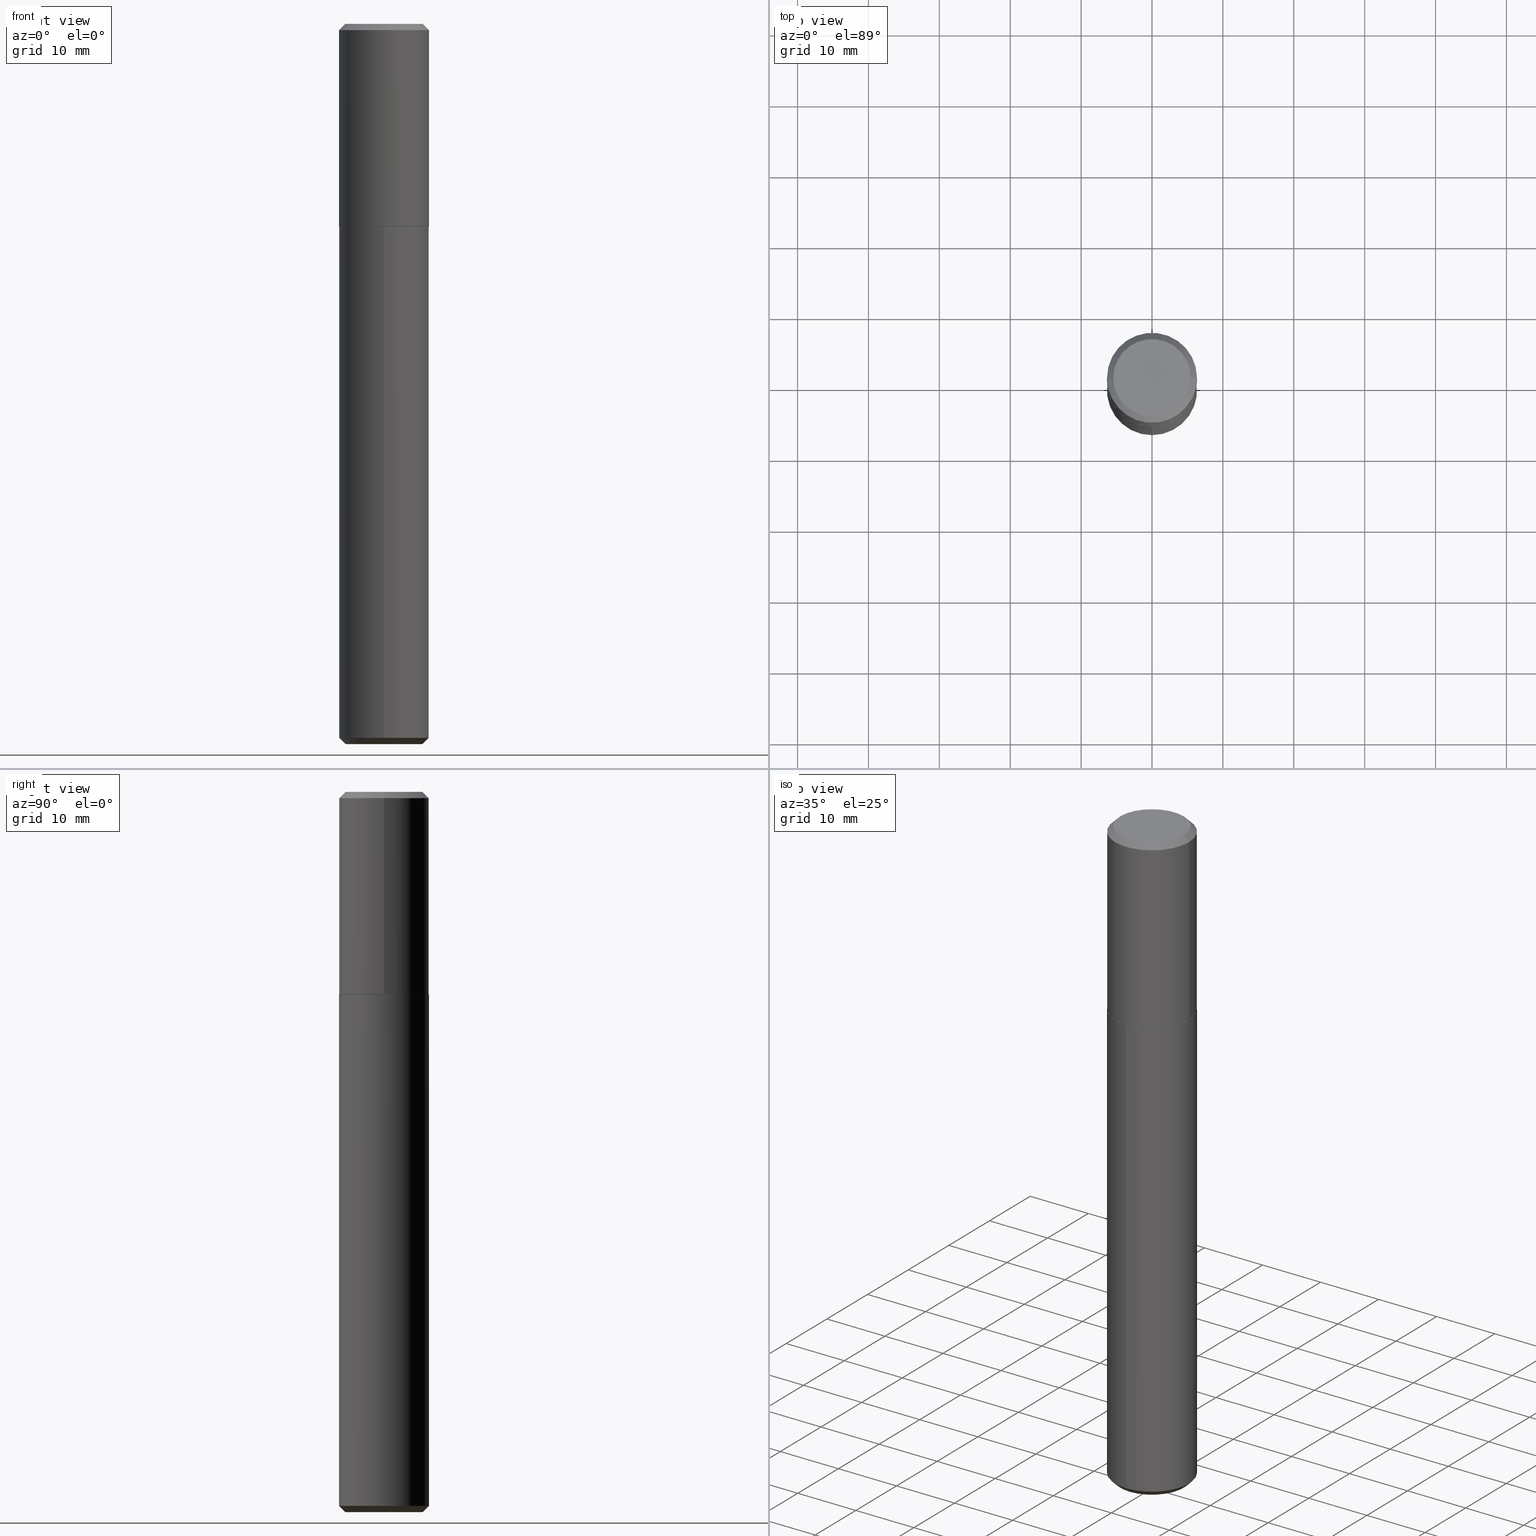
[diagram: canonical four-view strip — front | top / right | iso, engineering-drawing reading convention]
A machine part, canonical four-view strip (front | top / right | iso — engineering-drawing reading convention). The complete STEP part file that produces these views, byte-faithful:
ISO-10303-21;
HEADER;
FILE_DESCRIPTION (( 'STEP AP203' ),
    '1' );
FILE_NAME ('70032.STEP',
    '2024-04-19T13:36:19',
    ( '' ),
    ( '' ),
    'SwSTEP 2.0',
    'SolidWorks 2023',
    '' );
FILE_SCHEMA (( 'CONFIG_CONTROL_DESIGN' ));
ENDSEC;

DATA;
#1 = CARTESIAN_POINT ( 'NONE',  ( -0.2500000000000001110, -2.149813926128866467E-15, -1.124500000000000055 ) ) ;
#2 = VECTOR ( 'NONE', #72, 39.37007874015748143 ) ;
#3 = EDGE_CURVE ( 'NONE', #17, #251, #217, .T. ) ;
#4 = DIRECTION ( 'NONE',  ( -2.447946569938002556E-29, 3.487933040123486811E-15, 1.000000000000000000 ) ) ;
#5 = PERSON_AND_ORGANIZATION_ROLE ( 'creator' ) ;
#6 = LOCAL_TIME ( 9, 36, 19.00000000000000000, #164 ) ;
#7 = LINE ( 'NONE', #305, #144 ) ;
#8 = CARTESIAN_POINT ( 'NONE',  ( 9.703320665582205963E-29, -1.383364634014924079E-14, -3.964999999999999858 ) ) ;
#9 = VECTOR ( 'NONE', #275, 39.37007874015748854 ) ;
#10 = UNCERTAINTY_MEASURE_WITH_UNIT (LENGTH_MEASURE( 1.000000000000000082E-05 ), #359, 'distance_accuracy_value', 'NONE');
#11 = DIRECTION ( 'NONE',  ( 1.000000000000000000, -6.982962677686266711E-15, 0.000000000000000000 ) ) ;
#12 = AXIS2_PLACEMENT_3D ( 'NONE', #328, #100, #35 ) ;
#13 = EDGE_LOOP ( 'NONE', ( #408, #293, #118, #50 ) ) ;
#14 = FACE_OUTER_BOUND ( 'NONE', #137, .T. ) ;
#15 = CARTESIAN_POINT ( 'NONE',  ( 9.703320665582205963E-29, -1.383364634014924079E-14, -3.964999999999999858 ) ) ;
#16 = PERSON_AND_ORGANIZATION_ROLE ( 'design_owner' ) ;
#17 = VERTEX_POINT ( 'NONE', #272 ) ;
#18 = CARTESIAN_POINT ( 'NONE',  ( 2.751152406958279232E-29, -3.927916506198539224E-15, -1.125000000000000222 ) ) ;
#19 = ADVANCED_FACE ( 'NONE', ( #402 ), #278, .T. ) ;
#20 = AXIS2_PLACEMENT_3D ( 'NONE', #15, #361, #73 ) ;
#21 = DIRECTION ( 'NONE',  ( -2.447946569938002556E-29, 3.487933040123486811E-15, 1.000000000000000000 ) ) ;
#22 = ORIENTED_EDGE ( 'NONE', *, *, #246, .T. ) ;
#23 = ORIENTED_EDGE ( 'NONE', *, *, #388, .F. ) ;
#24 = EDGE_LOOP ( 'NONE', ( #22, #186 ) ) ;
#25 = CALENDAR_DATE ( 2024, 19, 4 ) ;
#26 = DIRECTION ( 'NONE',  ( 2.445468806185136597E-29, -3.491481338843145583E-15, -1.000000000000000000 ) ) ;
#27 = ORIENTED_EDGE ( 'NONE', *, *, #96, .T. ) ;
#28 = DIRECTION ( 'NONE',  ( -2.445468806185136597E-29, 3.491481338843145583E-15, 1.000000000000000000 ) ) ;
#29 = EDGE_CURVE ( 'NONE', #54, #268, #416, .T. ) ;
#30 = ORIENTED_EDGE ( 'NONE', *, *, #348, .T. ) ;
#31 = PRODUCT_DEFINITION_FORMATION_WITH_SPECIFIED_SOURCE ( 'ANY', '', #224, .NOT_KNOWN. ) ;
#32 = CIRCLE ( 'NONE', #102, 0.2500000000000000000 ) ;
#33 = EDGE_CURVE ( 'NONE', #251, #403, #76, .T. ) ;
#34 = EDGE_CURVE ( 'NONE', #311, #95, #108, .T. ) ;
#35 = DIRECTION ( 'NONE',  ( -6.982962677686265922E-15, -1.000000000000000000, 3.278217592397115862E-15 ) ) ;
#36 = PERSON_AND_ORGANIZATION ( #283, #381 ) ;
#37 = CARTESIAN_POINT ( 'NONE',  ( 2.751152406958279232E-29, -3.927916506198539224E-15, -1.125000000000000222 ) ) ;
#38 = CARTESIAN_POINT ( 'NONE',  ( 1.776356839400348678E-15, 0.2499999999999863720, -3.965000000000001190 ) ) ;
#39 = DIRECTION ( 'NONE',  ( 1.000000000000000000, -6.982962677686265922E-15, 0.000000000000000000 ) ) ;
#40 = LOCAL_TIME ( 9, 36, 19.00000000000000000, #335 ) ;
#41 = DIRECTION ( 'NONE',  ( -6.982962677686265922E-15, -1.000000000000000000, 3.278217592397115862E-15 ) ) ;
#42 = VECTOR ( 'NONE', #269, 39.37007874015748143 ) ;
#43 = CC_DESIGN_PERSON_AND_ORGANIZATION_ASSIGNMENT ( #286, #368, ( #31 ) ) ;
#44 = CARTESIAN_POINT ( 'NONE',  ( -0.2500000000000000555, 1.776356839400250859E-15, -1.229733772563726866E-29 ) ) ;
#45 = EDGE_CURVE ( 'NONE', #291, #346, #339, .T. ) ;
#46 = DIRECTION ( 'NONE',  ( -2.445468806185136597E-29, 3.491481338843145583E-15, 1.000000000000000000 ) ) ;
#47 = PERSON_AND_ORGANIZATION_ROLE ( 'classification_officer' ) ;
#48 = CARTESIAN_POINT ( 'NONE',  ( -5.998655598456380365E-46, 8.564490386131638345E-32, 2.452967538692148404E-17 ) ) ;
#49 = CARTESIAN_POINT ( 'NONE',  ( 9.703320665582205963E-29, -1.383364634014924079E-14, -3.964999999999999858 ) ) ;
#50 = ORIENTED_EDGE ( 'NONE', *, *, #400, .F. ) ;
#51 = AXIS2_PLACEMENT_3D ( 'NONE', #48, #367, #238 ) ;
#52 = DIRECTION ( 'NONE',  ( -2.447946569938002556E-29, 3.487933040123486811E-15, 1.000000000000000000 ) ) ;
#53 = CARTESIAN_POINT ( 'NONE',  ( 2.751152406958279232E-29, -3.927916506198539224E-15, -1.125000000000000222 ) ) ;
#54 = VERTEX_POINT ( 'NONE', #237 ) ;
#55 = DIRECTION ( 'NONE',  ( -2.445468806185136597E-29, 3.491481338843145583E-15, 1.000000000000000000 ) ) ;
#56 = FACE_OUTER_BOUND ( 'NONE', #62, .T. ) ;
#57 = ORIENTED_EDGE ( 'NONE', *, *, #388, .T. ) ;
#58 = CARTESIAN_POINT ( 'NONE',  ( 0.2500000000000000555, -1.745740669421567269E-15, 1.219044193948984228E-29 ) ) ;
#59 = CONICAL_SURFACE ( 'NONE', #298, 0.2500000000000001110, 0.7853981633972775267 ) ;
#60 = DIRECTION ( 'NONE',  ( 1.000000000000000000, -6.982962677686265922E-15, 0.000000000000000000 ) ) ;
#61 = ADVANCED_FACE ( 'NONE', ( #80 ), #308, .T. ) ;
#62 = EDGE_LOOP ( 'NONE', ( #27, #218, #414, #249 ) ) ;
#63 = VECTOR ( 'NONE', #65, 39.37007874015748143 ) ;
#64 = AXIS2_PLACEMENT_3D ( 'NONE', #198, #324, #296 ) ;
#65 = DIRECTION ( 'NONE',  ( 0.7071067811864267805, -2.468850131080992517E-15, 0.7071067811866682540 ) ) ;
#66 = CALENDAR_DATE ( 2024, 19, 4 ) ;
#67 = ADVANCED_FACE ( 'NONE', ( #142 ), #332, .T. ) ;
#68 = AXIS2_PLACEMENT_3D ( 'NONE', #119, #55, #373 ) ;
#69 = EDGE_CURVE ( 'NONE', #268, #54, #263, .T. ) ;
#70 = DATE_AND_TIME ( #66, #6 ) ;
#71 = DIRECTION ( 'NONE',  ( 2.438088387897960049E-29, -3.491481338843145188E-15, -1.000000000000000000 ) ) ;
#72 = DIRECTION ( 'NONE',  ( -0.7071067811864267805, 7.493145998869918709E-15, 0.7071067811866682540 ) ) ;
#73 = DIRECTION ( 'NONE',  ( -6.982962677686265922E-15, -1.000000000000000000, 4.370956789862821150E-15 ) ) ;
#74 = CARTESIAN_POINT ( 'NONE',  ( 2.751152406958279232E-29, -3.927916506198539224E-15, -1.125000000000000222 ) ) ;
#75 = ORIENTED_EDGE ( 'NONE', *, *, #162, .F. ) ;
#76 = LINE ( 'NONE', #208, #9 ) ;
#77 = AXIS2_PLACEMENT_3D ( 'NONE', #165, #329, #41 ) ;
#78 = APPROVAL ( #264, 'UNSPECIFIED' ) ;
#79 = APPLICATION_CONTEXT ( 'configuration controlled 3d designs of mechanical parts and assemblies' ) ;
#80 = FACE_OUTER_BOUND ( 'NONE', #193, .T. ) ;
#81 = PLANE ( 'NONE',  #136 ) ;
#82 = VERTEX_POINT ( 'NONE', #244 ) ;
#83 = CARTESIAN_POINT ( 'NONE',  ( 2.749929672555186430E-29, -3.926170765529117721E-15, -1.124500000000000055 ) ) ;
#84 = VECTOR ( 'NONE', #92, 39.37007874015748143 ) ;
#85 = DIRECTION ( 'NONE',  ( 1.000000000000000000, -6.982962677686266711E-15, 0.000000000000000000 ) ) ;
#86 = VERTEX_POINT ( 'NONE', #116 ) ;
#87 = EDGE_LOOP ( 'NONE', ( #415, #257, #248, #341 ) ) ;
#88 = DIMENSIONAL_EXPONENTS ( 1.000000000000000000, 0.000000000000000000, 0.000000000000000000, 0.000000000000000000, 0.000000000000000000, 0.000000000000000000, 0.000000000000000000 ) ;
#89 = APPROVAL_DATE_TIME ( #152, #130 ) ;
#90 = CARTESIAN_POINT ( 'NONE',  ( 8.559140821648030357E-31, -1.222018468595108458E-16, -0.03500000000000021844 ) ) ;
#91 = ORIENTED_EDGE ( 'NONE', *, *, #135, .F. ) ;
#92 = DIRECTION ( 'NONE',  ( -2.445468806185136877E-29, 3.491481338843145188E-15, 1.000000000000000000 ) ) ;
#93 = ORIENTED_EDGE ( 'NONE', *, *, #94, .T. ) ;
#94 = EDGE_CURVE ( 'NONE', #349, #172, #213, .T. ) ;
#95 = VERTEX_POINT ( 'NONE', #365 ) ;
#96 = EDGE_CURVE ( 'NONE', #82, #311, #179, .T. ) ;
#97 = CC_DESIGN_PERSON_AND_ORGANIZATION_ASSIGNMENT ( #318, #113, ( #31 ) ) ;
#98 = CC_DESIGN_APPROVAL ( #78, ( #156 ) ) ;
#99 = AXIS2_PLACEMENT_3D ( 'NONE', #357, #364, #200 ) ;
#100 = DIRECTION ( 'NONE',  ( -2.447946569938002556E-29, 3.487933040123486811E-15, 1.000000000000000000 ) ) ;
#101 = DIRECTION ( 'NONE',  ( -2.438088387897960049E-29, 3.491481338843145188E-15, 1.000000000000000000 ) ) ;
#102 = AXIS2_PLACEMENT_3D ( 'NONE', #171, #214, #106 ) ;
#103 = LINE ( 'NONE', #386, #2 ) ;
#104 = DIRECTION ( 'NONE',  ( -2.445468806185136597E-29, 3.491481338843145583E-15, 1.000000000000000000 ) ) ;
#105 = DESIGN_CONTEXT ( 'detailed design', #79, 'design' ) ;
#106 = DIRECTION ( 'NONE',  ( 1.000000000000000000, -6.982962677686266711E-15, 0.000000000000000000 ) ) ;
#107 = ORIENTED_EDGE ( 'NONE', *, *, #400, .T. ) ;
#108 = LINE ( 'NONE', #44, #42 ) ;
#109 = APPLICATION_PROTOCOL_DEFINITION ( 'international standard', 'config_control_design', 1994, #161 ) ;
#110 = DIRECTION ( 'NONE',  ( -6.982962677686265922E-15, -1.000000000000000000, 3.278217592397115862E-15 ) ) ;
#111 = ADVANCED_FACE ( 'NONE', ( #247 ), #81, .F. ) ;
#112 = CARTESIAN_POINT ( 'NONE',  ( -5.998655598456380365E-46, 8.564490386131638345E-32, 2.452967538692148404E-17 ) ) ;
#113 = PERSON_AND_ORGANIZATION_ROLE ( 'design_supplier' ) ;
#114 = CIRCLE ( 'NONE', #201, 0.2495000000000002216 ) ;
#115 = FACE_OUTER_BOUND ( 'NONE', #150, .T. ) ;
#116 = CARTESIAN_POINT ( 'NONE',  ( 0.2500000000000000000, -1.867942516281077449E-15, -0.03500000000000021844 ) ) ;
#117 = ADVANCED_FACE ( 'NONE', ( #280 ), #360, .T. ) ;
#118 = ORIENTED_EDGE ( 'NONE', *, *, #33, .T. ) ;
#119 = CARTESIAN_POINT ( 'NONE',  ( 2.749929672555186430E-29, -3.926170765529117721E-15, -1.124500000000000055 ) ) ;
#120 = AXIS2_PLACEMENT_3D ( 'NONE', #292, #26, #287 ) ;
#121 = COORDINATED_UNIVERSAL_TIME_OFFSET ( 5, 0, .BEHIND. ) ;
#122 = AXIS2_PLACEMENT_3D ( 'NONE', #112, #204, #301 ) ;
#123 = EDGE_LOOP ( 'NONE', ( #30, #375, #23, #289 ) ) ;
#124 = AXIS2_PLACEMENT_3D ( 'NONE', #192, #52, #401 ) ;
#125 = LINE ( 'NONE', #58, #84 ) ;
#126 = DIRECTION ( 'NONE',  ( -0.7071067811865447972, 2.468850131082228267E-15, -0.7071067811865502373 ) ) ;
#127 = COORDINATED_UNIVERSAL_TIME_OFFSET ( 5, 0, .BEHIND. ) ;
#128 = EDGE_LOOP ( 'NONE', ( #313, #282, #404, #321 ) ) ;
#129 = ORIENTED_EDGE ( 'NONE', *, *, #145, .T. ) ;
#130 = APPROVAL ( #316, 'UNSPECIFIED' ) ;
#131 = EDGE_LOOP ( 'NONE', ( #256, #141, #154, #91 ) ) ;
#132 = CIRCLE ( 'NONE', #160, 0.2500000000000000000 ) ;
#133 = CC_DESIGN_PERSON_AND_ORGANIZATION_ASSIGNMENT ( #245, #47, ( #231 ) ) ;
#134 = AXIS2_PLACEMENT_3D ( 'NONE', #18, #170, #394 ) ;
#135 = EDGE_CURVE ( 'NONE', #54, #95, #7, .T. ) ;
#136 = AXIS2_PLACEMENT_3D ( 'NONE', #336, #71, #146 ) ;
#137 = EDGE_LOOP ( 'NONE', ( #344, #277 ) ) ;
#138 = CARTESIAN_POINT ( 'NONE',  ( 2.751152406958279232E-29, -3.927916506198539224E-15, -1.125000000000000222 ) ) ;
#139 = CARTESIAN_POINT ( 'NONE',  ( 9.788998795530035844E-29, -1.395572399655356252E-14, -4.000000000000000000 ) ) ;
#140 = APPLICATION_PROTOCOL_DEFINITION ( 'international standard', 'config_control_design', 1994, #79 ) ;
#141 = ORIENTED_EDGE ( 'NONE', *, *, #157, .T. ) ;
#142 = FACE_OUTER_BOUND ( 'NONE', #376, .T. ) ;
#143 = PERSON_AND_ORGANIZATION ( #283, #381 ) ;
#144 = VECTOR ( 'NONE', #126, 39.37007874015748143 ) ;
#145 = EDGE_CURVE ( 'NONE', #311, #82, #372, .T. ) ;
#146 = DIRECTION ( 'NONE',  ( -1.000000000000000000, 6.982962677686265922E-15, -4.876176775795935793E-29 ) ) ;
#147 = APPROVAL_ROLE ( '' ) ;
#148 = DIRECTION ( 'NONE',  ( -2.445468806185136597E-29, 3.491481338843145583E-15, 1.000000000000000000 ) ) ;
#149 = DIRECTION ( 'NONE',  ( 0.7071067811865447972, -7.319954787623246579E-15, -0.7071067811865502373 ) ) ;
#150 = EDGE_LOOP ( 'NONE', ( #221, #351, #259, #225 ) ) ;
#151 = CARTESIAN_POINT ( 'NONE',  ( -1.745740669421539068E-15, -0.2500000000000039413, -1.124999999999999334 ) ) ;
#152 = DATE_AND_TIME ( #25, #266 ) ;
#153 = DIRECTION ( 'NONE',  ( 5.024295867788060812E-15, 0.7071067811865499042, 0.7071067811865450192 ) ) ;
#154 = ORIENTED_EDGE ( 'NONE', *, *, #187, .T. ) ;
#155 = FACE_OUTER_BOUND ( 'NONE', #87, .T. ) ;
#156 = PRODUCT_DEFINITION ( 'UNKNOWN', '', #31, #105 ) ;
#157 = EDGE_CURVE ( 'NONE', #268, #86, #216, .T. ) ;
#158 = FACE_OUTER_BOUND ( 'NONE', #128, .T. ) ;
#159 = ADVANCED_FACE ( 'NONE', ( #155 ), #258, .T. ) ;
#160 = AXIS2_PLACEMENT_3D ( 'NONE', #74, #393, #110 ) ;
#161 = APPLICATION_CONTEXT ( 'configuration controlled 3d designs of mechanical parts and assemblies' ) ;
#162 = EDGE_CURVE ( 'NONE', #403, #319, #184, .T. ) ;
#163 = DIRECTION ( 'NONE',  ( 1.000000000000000000, -6.982962677686265922E-15, 4.876176775795935793E-29 ) ) ;
#164 = COORDINATED_UNIVERSAL_TIME_OFFSET ( 5, 0, .BEHIND. ) ;
#165 = CARTESIAN_POINT ( 'NONE',  ( 2.751152406958279232E-29, -3.927916506198539224E-15, -1.125000000000000222 ) ) ;
#166 = DIRECTION ( 'NONE',  ( -2.447946569938002275E-29, 3.487933040123486811E-15, 1.000000000000000000 ) ) ;
#167 = APPROVAL_PERSON_ORGANIZATION ( #143, #130, #185 ) ;
#168 = CLOSED_SHELL ( 'NONE', ( #262, #294, #159, #384, #212, #61, #327, #111 ) ) ;
#169 = AXIS2_PLACEMENT_3D ( 'NONE', #138, #101, #163 ) ;
#170 = DIRECTION ( 'NONE',  ( -2.445468806185136597E-29, 3.491481338843145583E-15, 1.000000000000000000 ) ) ;
#171 = CARTESIAN_POINT ( 'NONE',  ( 8.559140821648030357E-31, -1.222018468595108458E-16, -0.03500000000000021844 ) ) ;
#172 = VERTEX_POINT ( 'NONE', #288 ) ;
#173 = DIRECTION ( 'NONE',  ( 1.000000000000000000, -6.982962677686265922E-15, 0.000000000000000000 ) ) ;
#174 = PERSON_AND_ORGANIZATION ( #283, #381 ) ;
#175 = DIRECTION ( 'NONE',  ( -2.447946569938002556E-29, 3.487933040123486811E-15, 1.000000000000000000 ) ) ;
#176 = CALENDAR_DATE ( 2024, 19, 4 ) ;
#177 = APPROVAL ( #411, 'UNSPECIFIED' ) ;
#178 = DIRECTION ( 'NONE',  ( -6.982962677686265922E-15, -1.000000000000000000, 3.278217592397115862E-15 ) ) ;
#179 = CIRCLE ( 'NONE', #326, 0.2500000000000001110 ) ;
#180 = DIRECTION ( 'NONE',  ( -2.445468806185136597E-29, 3.491481338843145583E-15, 1.000000000000000000 ) ) ;
#181 = ADVANCED_FACE ( 'NONE', ( #229 ), #350, .F. ) ;
#182 = ORIENTED_EDGE ( 'NONE', *, *, #246, .F. ) ;
#183 = ORIENTED_EDGE ( 'NONE', *, *, #162, .T. ) ;
#184 = LINE ( 'NONE', #342, #371 ) ;
#185 = APPROVAL_ROLE ( '' ) ;
#186 = ORIENTED_EDGE ( 'NONE', *, *, #377, .T. ) ;
#187 = EDGE_CURVE ( 'NONE', #86, #95, #32, .T. ) ;
#188 = ADVANCED_FACE ( 'NONE', ( #337 ), #267, .T. ) ;
#189 = CARTESIAN_POINT ( 'NONE',  ( 0.2150000000000000244, -1.656166707911636545E-15, 2.452967538693252193E-17 ) ) ;
#190 = AXIS2_PLACEMENT_3D ( 'NONE', #49, #250, #397 ) ;
#191 = ORIENTED_EDGE ( 'NONE', *, *, #320, .T. ) ;
#192 = CARTESIAN_POINT ( 'NONE',  ( 9.788998795530035844E-29, -1.395572399655356252E-14, -4.000000000000000000 ) ) ;
#193 = EDGE_LOOP ( 'NONE', ( #331, #129, #191, #379 ) ) ;
#194 = ORIENTED_EDGE ( 'NONE', *, *, #69, .T. ) ;
#195 = APPROVAL_PERSON_ORGANIZATION ( #300, #78, #383 ) ;
#196 = AXIS2_PLACEMENT_3D ( 'NONE', #37, #21, #178 ) ;
#197 = CC_DESIGN_DATE_AND_TIME_ASSIGNMENT ( #211, #279, ( #231 ) ) ;
#198 = CARTESIAN_POINT ( 'NONE',  ( 0.000000000000000000, 0.000000000000000000, 0.000000000000000000 ) ) ;
#199 = CC_DESIGN_DATE_AND_TIME_ASSIGNMENT ( #315, #396, ( #156 ) ) ;
#200 = DIRECTION ( 'NONE',  ( 1.000000000000000000, 0.000000000000000000, 0.000000000000000000 ) ) ;
#201 = AXIS2_PLACEMENT_3D ( 'NONE', #312, #148, #85 ) ;
#202 = APPROVAL_DATE_TIME ( #70, #78 ) ;
#203 = DIRECTION ( 'NONE',  ( -6.982962677686265922E-15, -1.000000000000000000, 3.487933040123486811E-15 ) ) ;
#204 = DIRECTION ( 'NONE',  ( -2.445468806185136597E-29, 3.491481338843145583E-15, 1.000000000000000000 ) ) ;
#205 =( NAMED_UNIT ( * ) SI_UNIT ( $, .STERADIAN. ) SOLID_ANGLE_UNIT ( ) );
#206 = CC_DESIGN_SECURITY_CLASSIFICATION ( #231, ( #31 ) ) ;
#207 = CIRCLE ( 'NONE', #252, 0.2500000000000000000 ) ;
#208 = CARTESIAN_POINT ( 'NONE',  ( -1.745740669421469451E-15, -0.2500000000000138223, -3.964999999999998970 ) ) ;
#209 = ORIENTED_EDGE ( 'NONE', *, *, #29, .T. ) ;
#210 = DIRECTION ( 'NONE',  ( 1.000000000000000000, -6.982962677686267499E-15, 4.876176775795935793E-29 ) ) ;
#211 = DATE_AND_TIME ( #366, #40 ) ;
#212 = ADVANCED_FACE ( 'NONE', ( #115 ), #59, .T. ) ;
#213 = LINE ( 'NONE', #392, #236 ) ;
#214 = DIRECTION ( 'NONE',  ( -2.445468806185136597E-29, 3.491481338843145583E-15, 1.000000000000000000 ) ) ;
#215 = EDGE_LOOP ( 'NONE', ( #230, #398 ) ) ;
#216 = LINE ( 'NONE', #340, #295 ) ;
#217 = CIRCLE ( 'NONE', #378, 0.2149999999999999689 ) ;
#218 = ORIENTED_EDGE ( 'NONE', *, *, #34, .T. ) ;
#219 = APPROVAL_DATE_TIME ( #399, #177 ) ;
#220 = LINE ( 'NONE', #261, #387 ) ;
#221 = ORIENTED_EDGE ( 'NONE', *, *, #395, .F. ) ;
#222 = SHAPE_DEFINITION_REPRESENTATION ( #323, #242 ) ;
#223 = DIRECTION ( 'NONE',  ( -1.000000000000000000, 6.982962677686266711E-15, 0.000000000000000000 ) ) ;
#224 = PRODUCT ( '70032', '70032', '', ( #333 ) ) ;
#225 = ORIENTED_EDGE ( 'NONE', *, *, #145, .F. ) ;
#226 = CONICAL_SURFACE ( 'NONE', #120, 0.2500000000000000000, 0.7853981633974445042 ) ;
#227 = EDGE_LOOP ( 'NONE', ( #209, #194 ) ) ;
#228 = EDGE_CURVE ( 'NONE', #346, #291, #114, .T. ) ;
#229 = FACE_OUTER_BOUND ( 'NONE', #24, .T. ) ;
#230 = ORIENTED_EDGE ( 'NONE', *, *, #348, .F. ) ;
#231 = SECURITY_CLASSIFICATION ( '', '', #254 ) ;
#232 = CARTESIAN_POINT ( 'NONE',  ( 0.2500000000000001110, -5.671911434950684398E-15, -1.124500000000000055 ) ) ;
#233 = CC_DESIGN_PERSON_AND_ORGANIZATION_ASSIGNMENT ( #174, #16, ( #224 ) ) ;
#234 = PLANE ( 'NONE',  #169 ) ;
#235 = EDGE_CURVE ( 'NONE', #95, #86, #310, .T. ) ;
#236 = VECTOR ( 'NONE', #239, 39.37007874015748143 ) ;
#237 = CARTESIAN_POINT ( 'NONE',  ( -0.2150000000000000244, 1.562437899132301703E-15, 2.452967538691076971E-17 ) ) ;
#238 = DIRECTION ( 'NONE',  ( 1.000000000000000000, -6.982962677686266711E-15, 4.875660406730183845E-29 ) ) ;
#239 = DIRECTION ( 'NONE',  ( -2.447946569938002556E-29, 3.487933040123486811E-15, 1.000000000000000000 ) ) ;
#240 = FACE_OUTER_BOUND ( 'NONE', #215, .T. ) ;
#241 = CARTESIAN_POINT ( 'NONE',  ( -1.501336975702449287E-15, -0.2150000000000139300, -3.999999999999999556 ) ) ;
#242 = ADVANCED_BREP_SHAPE_REPRESENTATION ( '70032', ( #405, #271, #99 ), #370 ) ;
#243 = CIRCLE ( 'NONE', #12, 0.2500000000000000000 ) ;
#244 = CARTESIAN_POINT ( 'NONE',  ( 0.2500000000000001110, -5.671911434950684398E-15, -1.124500000000000055 ) ) ;
#245 = PERSON_AND_ORGANIZATION ( #283, #381 ) ;
#246 = EDGE_CURVE ( 'NONE', #319, #172, #132, .T. ) ;
#247 = FACE_OUTER_BOUND ( 'NONE', #227, .T. ) ;
#248 = ORIENTED_EDGE ( 'NONE', *, *, #96, .F. ) ;
#249 = ORIENTED_EDGE ( 'NONE', *, *, #320, .F. ) ;
#250 = DIRECTION ( 'NONE',  ( -2.447946569938002556E-29, 3.487933040123486811E-15, 1.000000000000000000 ) ) ;
#251 = VERTEX_POINT ( 'NONE', #241 ) ;
#252 = AXIS2_PLACEMENT_3D ( 'NONE', #8, #4, #385 ) ;
#253 = AXIS2_PLACEMENT_3D ( 'NONE', #83, #28, #60 ) ;
#254 = SECURITY_CLASSIFICATION_LEVEL ( 'unclassified' ) ;
#255 = CIRCLE ( 'NONE', #124, 0.2149999999999999689 ) ;
#256 = ORIENTED_EDGE ( 'NONE', *, *, #69, .F. ) ;
#257 = ORIENTED_EDGE ( 'NONE', *, *, #395, .T. ) ;
#258 = CONICAL_SURFACE ( 'NONE', #68, 0.2500000000000001110, 0.7853981633972775267 ) ;
#259 = ORIENTED_EDGE ( 'NONE', *, *, #307, .T. ) ;
#260 = EDGE_CURVE ( 'NONE', #17, #349, #220, .T. ) ;
#261 = CARTESIAN_POINT ( 'NONE',  ( 1.776356839400347100E-15, 0.2499999999999861777, -3.965000000000001190 ) ) ;
#262 = ADVANCED_FACE ( 'NONE', ( #380 ), #352, .T. ) ;
#263 = CIRCLE ( 'NONE', #122, 0.2150000000000000244 ) ;
#264 = APPROVAL_STATUS ( 'not_yet_approved' ) ;
#265 = COORDINATED_UNIVERSAL_TIME_OFFSET ( 5, 0, .BEHIND. ) ;
#266 = LOCAL_TIME ( 9, 36, 19.00000000000000000, #127 ) ;
#267 = CONICAL_SURFACE ( 'NONE', #190, 0.2500000000000000000, 0.7853981633974482790 ) ;
#268 = VERTEX_POINT ( 'NONE', #189 ) ;
#269 = DIRECTION ( 'NONE',  ( -2.445468806185136877E-29, 3.491481338843145188E-15, 1.000000000000000000 ) ) ;
#270 = CARTESIAN_POINT ( 'NONE',  ( -1.745740669421467873E-15, -0.2500000000000136002, -3.964999999999998970 ) ) ;
#271 = MANIFOLD_SOLID_BREP ( 'Body-Move/Copy2[2]', #168 ) ;
#272 = CARTESIAN_POINT ( 'NONE',  ( 1.652011860642329852E-15, 0.2149999999999859801, -4.000000000000000888 ) ) ;
#273 =( LENGTH_UNIT ( ) NAMED_UNIT ( * ) SI_UNIT ( $, .METRE. ) );
#274 = DIRECTION ( 'NONE',  ( 6.982962677686265922E-15, 1.000000000000000000, -3.487933040123486811E-15 ) ) ;
#275 = DIRECTION ( 'NONE',  ( -4.937700262164547253E-15, -0.7071067811865450192, 0.7071067811865499042 ) ) ;
#276 = CC_DESIGN_PERSON_AND_ORGANIZATION_ASSIGNMENT ( #36, #5, ( #156 ) ) ;
#277 = ORIENTED_EDGE ( 'NONE', *, *, #45, .F. ) ;
#278 = CONICAL_SURFACE ( 'NONE', #20, 0.2500000000000000000, 0.7853981633974482790 ) ;
#279 = DATE_TIME_ROLE ( 'classification_date' ) ;
#280 = FACE_OUTER_BOUND ( 'NONE', #413, .T. ) ;
#281 = ORIENTED_EDGE ( 'NONE', *, *, #94, .F. ) ;
#282 = ORIENTED_EDGE ( 'NONE', *, *, #29, .F. ) ;
#283 = PERSON ( 'UNSPECIFIED', 'UNSPECIFIED', 'UNSPECIFIED', ('UNSPECIFIED'), ('UNSPECIFIED'), ('UNSPECIFIED') ) ;
#284 = APPROVAL_PERSON_ORGANIZATION ( #374, #177, #147 ) ;
#285 = AXIS2_PLACEMENT_3D ( 'NONE', #391, #304, #11 ) ;
#286 = PERSON_AND_ORGANIZATION ( #283, #381 ) ;
#287 = DIRECTION ( 'NONE',  ( -1.000000000000000000, 6.982962677686266711E-15, 0.000000000000000000 ) ) ;
#288 = CARTESIAN_POINT ( 'NONE',  ( 1.776356839400347889E-15, 0.2499999999999960587, -1.125000000000000888 ) ) ;
#289 = ORIENTED_EDGE ( 'NONE', *, *, #33, .F. ) ;
#290 = CYLINDRICAL_SURFACE ( 'NONE', #64, 0.2500000000000000555 ) ;
#291 = VERTEX_POINT ( 'NONE', #345 ) ;
#292 = CARTESIAN_POINT ( 'NONE',  ( 8.559140821648030357E-31, -1.222018468595108458E-16, -0.03500000000000021844 ) ) ;
#293 = ORIENTED_EDGE ( 'NONE', *, *, #3, .T. ) ;
#294 = ADVANCED_FACE ( 'NONE', ( #56 ), #290, .T. ) ;
#295 = VECTOR ( 'NONE', #149, 39.37007874015748143 ) ;
#296 = DIRECTION ( 'NONE',  ( 1.000000000000000000, -6.982962677686267499E-15, 4.876176775795935793E-29 ) ) ;
#297 = AXIS2_PLACEMENT_3D ( 'NONE', #306, #166, #203 ) ;
#298 = AXIS2_PLACEMENT_3D ( 'NONE', #369, #180, #39 ) ;
#299 = DIRECTION ( 'NONE',  ( -6.982962677686265922E-15, -1.000000000000000000, 4.370956789862821150E-15 ) ) ;
#300 = PERSON_AND_ORGANIZATION ( #283, #381 ) ;
#301 = DIRECTION ( 'NONE',  ( 1.000000000000000000, -6.982962677686266711E-15, 4.875660406730183845E-29 ) ) ;
#302 = CARTESIAN_POINT ( 'NONE',  ( 9.703320665582205963E-29, -1.383364634014924079E-14, -3.964999999999999858 ) ) ;
#303 = LOCAL_TIME ( 9, 36, 19.00000000000000000, #265 ) ;
#304 = DIRECTION ( 'NONE',  ( -2.445468806185136597E-29, 3.491481338843145583E-15, 1.000000000000000000 ) ) ;
#305 = CARTESIAN_POINT ( 'NONE',  ( -0.2500000000000000000, 1.623538822562055906E-15, -0.03500000000000021844 ) ) ;
#306 = CARTESIAN_POINT ( 'NONE',  ( 9.781875224740546387E-29, -1.396592535537258233E-14, -4.000000000000000000 ) ) ;
#307 = EDGE_CURVE ( 'NONE', #346, #82, #356, .T. ) ;
#308 = CYLINDRICAL_SURFACE ( 'NONE', #317, 0.2500000000000000555 ) ;
#309 = DIRECTION ( 'NONE',  ( 2.447946569938002275E-29, -3.487933040123486811E-15, -1.000000000000000000 ) ) ;
#310 = CIRCLE ( 'NONE', #285, 0.2500000000000000000 ) ;
#311 = VERTEX_POINT ( 'NONE', #1 ) ;
#312 = CARTESIAN_POINT ( 'NONE',  ( 2.751152406958279232E-29, -3.927916506198539224E-15, -1.125000000000000222 ) ) ;
#313 = ORIENTED_EDGE ( 'NONE', *, *, #157, .F. ) ;
#314 = PRODUCT_RELATED_PRODUCT_CATEGORY ( 'detail', '', ( #224 ) ) ;
#315 = DATE_AND_TIME ( #406, #303 ) ;
#316 = APPROVAL_STATUS ( 'not_yet_approved' ) ;
#317 = AXIS2_PLACEMENT_3D ( 'NONE', #389, #104, #210 ) ;
#318 = PERSON_AND_ORGANIZATION ( #283, #381 ) ;
#319 = VERTEX_POINT ( 'NONE', #151 ) ;
#320 = EDGE_CURVE ( 'NONE', #82, #86, #125, .T. ) ;
#321 = ORIENTED_EDGE ( 'NONE', *, *, #235, .T. ) ;
#322 = CIRCLE ( 'NONE', #410, 0.2500000000000000000 ) ;
#323 = PRODUCT_DEFINITION_SHAPE ( 'NONE', 'NONE',  #156 ) ;
#324 = DIRECTION ( 'NONE',  ( -2.445468806185136597E-29, 3.491481338843145583E-15, 1.000000000000000000 ) ) ;
#325 = DIRECTION ( 'NONE',  ( -2.447946569938002556E-29, 3.487933040123486811E-15, 1.000000000000000000 ) ) ;
#326 = AXIS2_PLACEMENT_3D ( 'NONE', #334, #46, #173 ) ;
#327 = ADVANCED_FACE ( 'NONE', ( #158 ), #226, .T. ) ;
#328 = CARTESIAN_POINT ( 'NONE',  ( 2.751152406958279232E-29, -3.927916506198539224E-15, -1.125000000000000222 ) ) ;
#329 = DIRECTION ( 'NONE',  ( -2.447946569938002556E-29, 3.487933040123486811E-15, 1.000000000000000000 ) ) ;
#330 = PLANE ( 'NONE',  #297 ) ;
#331 = ORIENTED_EDGE ( 'NONE', *, *, #34, .F. ) ;
#332 = CYLINDRICAL_SURFACE ( 'NONE', #196, 0.2500000000000000000 ) ;
#333 = MECHANICAL_CONTEXT ( 'NONE', #161, 'mechanical' ) ;
#334 = CARTESIAN_POINT ( 'NONE',  ( 2.749929672555186430E-29, -3.926170765529117721E-15, -1.124500000000000055 ) ) ;
#335 = COORDINATED_UNIVERSAL_TIME_OFFSET ( 5, 0, .BEHIND. ) ;
#336 = CARTESIAN_POINT ( 'NONE',  ( -2.999327799228190183E-46, 4.282245193065819172E-32, 1.226483769346074202E-17 ) ) ;
#337 = FACE_OUTER_BOUND ( 'NONE', #123, .T. ) ;
#338 = ORIENTED_EDGE ( 'NONE', *, *, #377, .F. ) ;
#339 = CIRCLE ( 'NONE', #134, 0.2495000000000002216 ) ;
#340 = CARTESIAN_POINT ( 'NONE',  ( 0.2500000000000000000, -1.837326346302393662E-15, -0.03500000000000021844 ) ) ;
#341 = ORIENTED_EDGE ( 'NONE', *, *, #307, .F. ) ;
#342 = CARTESIAN_POINT ( 'NONE',  ( -1.745740669421539068E-15, -0.2500000000000039413, -1.124999999999999334 ) ) ;
#343 = DIRECTION ( 'NONE',  ( 2.445468806185136597E-29, -3.491481338843145583E-15, -1.000000000000000000 ) ) ;
#344 = ORIENTED_EDGE ( 'NONE', *, *, #228, .F. ) ;
#345 = CARTESIAN_POINT ( 'NONE',  ( -0.2495000000000002216, -2.152463153302977274E-15, -1.125000000000000222 ) ) ;
#346 = VERTEX_POINT ( 'NONE', #412 ) ;
#347 = CC_DESIGN_APPROVAL ( #177, ( #231 ) ) ;
#348 = EDGE_CURVE ( 'NONE', #251, #17, #255, .T. ) ;
#349 = VERTEX_POINT ( 'NONE', #38 ) ;
#350 = PLANE ( 'NONE',  #353 ) ;
#351 = ORIENTED_EDGE ( 'NONE', *, *, #45, .T. ) ;
#352 = CONICAL_SURFACE ( 'NONE', #382, 0.2500000000000000000, 0.7853981633974445042 ) ;
#353 = AXIS2_PLACEMENT_3D ( 'NONE', #53, #309, #274 ) ;
#354 = LOCAL_TIME ( 9, 36, 19.00000000000000000, #121 ) ;
#355 = DIRECTION ( 'NONE',  ( -2.447946569938002556E-29, 3.487933040123486811E-15, 1.000000000000000000 ) ) ;
#356 = LINE ( 'NONE', #232, #63 ) ;
#357 = CARTESIAN_POINT ( 'NONE',  ( 0.000000000000000000, 0.000000000000000000, 0.000000000000000000 ) ) ;
#358 = ADVANCED_FACE ( 'NONE', ( #240 ), #330, .F. ) ;
#359 =( CONVERSION_BASED_UNIT ( 'INCH', #390 ) LENGTH_UNIT ( ) NAMED_UNIT ( #88 ) );
#360 = CYLINDRICAL_SURFACE ( 'NONE', #77, 0.2500000000000000000 ) ;
#361 = DIRECTION ( 'NONE',  ( -2.447946569938002556E-29, 3.487933040123486811E-15, 1.000000000000000000 ) ) ;
#362 =( NAMED_UNIT ( * ) PLANE_ANGLE_UNIT ( ) SI_UNIT ( $, .RADIAN. ) );
#363 = DIRECTION ( 'NONE',  ( -6.982962677686265922E-15, -1.000000000000000000, 2.541253947594663808E-15 ) ) ;
#364 = DIRECTION ( 'NONE',  ( 0.000000000000000000, 0.000000000000000000, 1.000000000000000000 ) ) ;
#365 = CARTESIAN_POINT ( 'NONE',  ( -0.2500000000000000000, -2.478294667940632885E-16, -0.03500000000000021844 ) ) ;
#366 = CALENDAR_DATE ( 2024, 19, 4 ) ;
#367 = DIRECTION ( 'NONE',  ( -2.445468806185136597E-29, 3.491481338843145583E-15, 1.000000000000000000 ) ) ;
#368 = PERSON_AND_ORGANIZATION_ROLE ( 'creator' ) ;
#369 = CARTESIAN_POINT ( 'NONE',  ( 2.749929672555186430E-29, -3.926170765529117721E-15, -1.124500000000000055 ) ) ;
#370 =( GEOMETRIC_REPRESENTATION_CONTEXT ( 3 ) GLOBAL_UNCERTAINTY_ASSIGNED_CONTEXT ( ( #10 ) ) GLOBAL_UNIT_ASSIGNED_CONTEXT ( ( #359, #362, #205 ) ) REPRESENTATION_CONTEXT ( 'NONE', 'WORKASPACE' ) );
#371 = VECTOR ( 'NONE', #355, 39.37007874015748143 ) ;
#372 = CIRCLE ( 'NONE', #253, 0.2500000000000001110 ) ;
#373 = DIRECTION ( 'NONE',  ( 1.000000000000000000, -6.982962677686265922E-15, 0.000000000000000000 ) ) ;
#374 = PERSON_AND_ORGANIZATION ( #283, #381 ) ;
#375 = ORIENTED_EDGE ( 'NONE', *, *, #260, .T. ) ;
#376 = EDGE_LOOP ( 'NONE', ( #281, #107, #183, #338 ) ) ;
#377 = EDGE_CURVE ( 'NONE', #172, #319, #243, .T. ) ;
#378 = AXIS2_PLACEMENT_3D ( 'NONE', #139, #175, #363 ) ;
#379 = ORIENTED_EDGE ( 'NONE', *, *, #235, .F. ) ;
#380 = FACE_OUTER_BOUND ( 'NONE', #131, .T. ) ;
#381 = ORGANIZATION ( 'UNSPECIFIED', 'UNSPECIFIED', '' ) ;
#382 = AXIS2_PLACEMENT_3D ( 'NONE', #90, #343, #223 ) ;
#383 = APPROVAL_ROLE ( '' ) ;
#384 = ADVANCED_FACE ( 'NONE', ( #14 ), #234, .F. ) ;
#385 = DIRECTION ( 'NONE',  ( -6.982962677686265922E-15, -1.000000000000000000, 4.370956789862821150E-15 ) ) ;
#386 = CARTESIAN_POINT ( 'NONE',  ( -0.2500000000000001110, -2.149813926128866467E-15, -1.124500000000000055 ) ) ;
#387 = VECTOR ( 'NONE', #153, 39.37007874015748854 ) ;
#388 = EDGE_CURVE ( 'NONE', #403, #349, #322, .T. ) ;
#389 = CARTESIAN_POINT ( 'NONE',  ( 0.000000000000000000, 0.000000000000000000, 0.000000000000000000 ) ) ;
#390 = LENGTH_MEASURE_WITH_UNIT ( LENGTH_MEASURE( 0.02539999999999999897 ), #273 );
#391 = CARTESIAN_POINT ( 'NONE',  ( 8.559140821648030357E-31, -1.222018468595108458E-16, -0.03500000000000021844 ) ) ;
#392 = CARTESIAN_POINT ( 'NONE',  ( 1.776356839400277680E-15, 0.2499999999999960587, -1.125000000000000888 ) ) ;
#393 = DIRECTION ( 'NONE',  ( -2.447946569938002556E-29, 3.487933040123486811E-15, 1.000000000000000000 ) ) ;
#394 = DIRECTION ( 'NONE',  ( 1.000000000000000000, -6.982962677686266711E-15, 0.000000000000000000 ) ) ;
#395 = EDGE_CURVE ( 'NONE', #291, #311, #103, .T. ) ;
#396 = DATE_TIME_ROLE ( 'creation_date' ) ;
#397 = DIRECTION ( 'NONE',  ( -6.982962677686265922E-15, -1.000000000000000000, 4.370956789862821150E-15 ) ) ;
#398 = ORIENTED_EDGE ( 'NONE', *, *, #3, .F. ) ;
#399 = DATE_AND_TIME ( #176, #354 ) ;
#400 = EDGE_CURVE ( 'NONE', #349, #403, #207, .T. ) ;
#401 = DIRECTION ( 'NONE',  ( -6.982962677686265922E-15, -1.000000000000000000, 2.541253947594663808E-15 ) ) ;
#402 = FACE_OUTER_BOUND ( 'NONE', #13, .T. ) ;
#403 = VERTEX_POINT ( 'NONE', #270 ) ;
#404 = ORIENTED_EDGE ( 'NONE', *, *, #135, .T. ) ;
#405 = MANIFOLD_SOLID_BREP ( 'Body-Move/Copy2[1]', #409 ) ;
#406 = CALENDAR_DATE ( 2024, 19, 4 ) ;
#407 = CC_DESIGN_APPROVAL ( #130, ( #31 ) ) ;
#408 = ORIENTED_EDGE ( 'NONE', *, *, #260, .F. ) ;
#409 = CLOSED_SHELL ( 'NONE', ( #117, #188, #19, #67, #181, #358 ) ) ;
#410 = AXIS2_PLACEMENT_3D ( 'NONE', #302, #325, #299 ) ;
#411 = APPROVAL_STATUS ( 'not_yet_approved' ) ;
#412 = CARTESIAN_POINT ( 'NONE',  ( 0.2495000000000002216, -5.670165694281264472E-15, -1.125000000000000222 ) ) ;
#413 = EDGE_LOOP ( 'NONE', ( #57, #93, #182, #75 ) ) ;
#414 = ORIENTED_EDGE ( 'NONE', *, *, #187, .F. ) ;
#415 = ORIENTED_EDGE ( 'NONE', *, *, #228, .T. ) ;
#416 = CIRCLE ( 'NONE', #51, 0.2150000000000000244 ) ;
ENDSEC;
END-ISO-10303-21;
